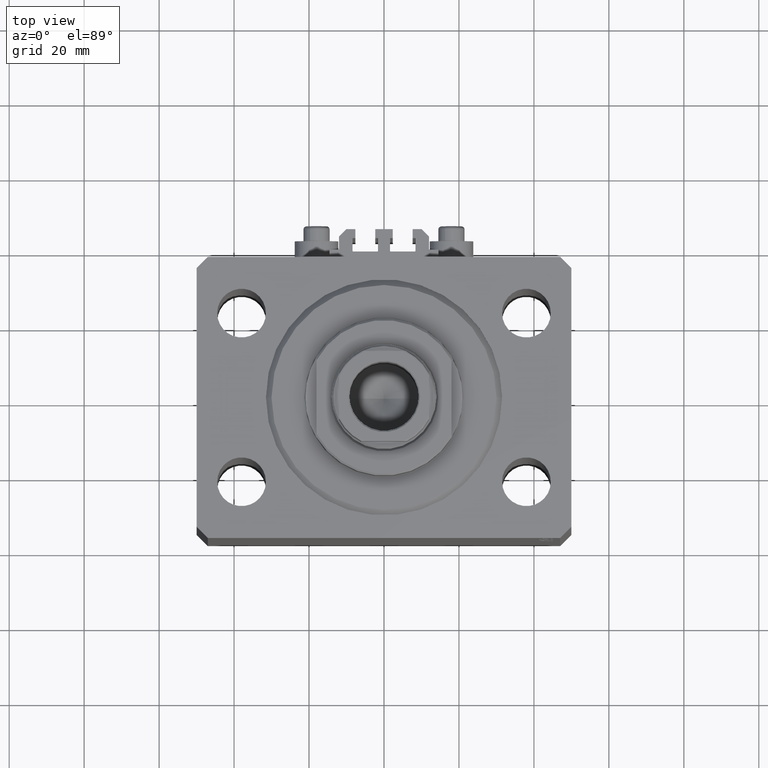
[diagram: clean part render]
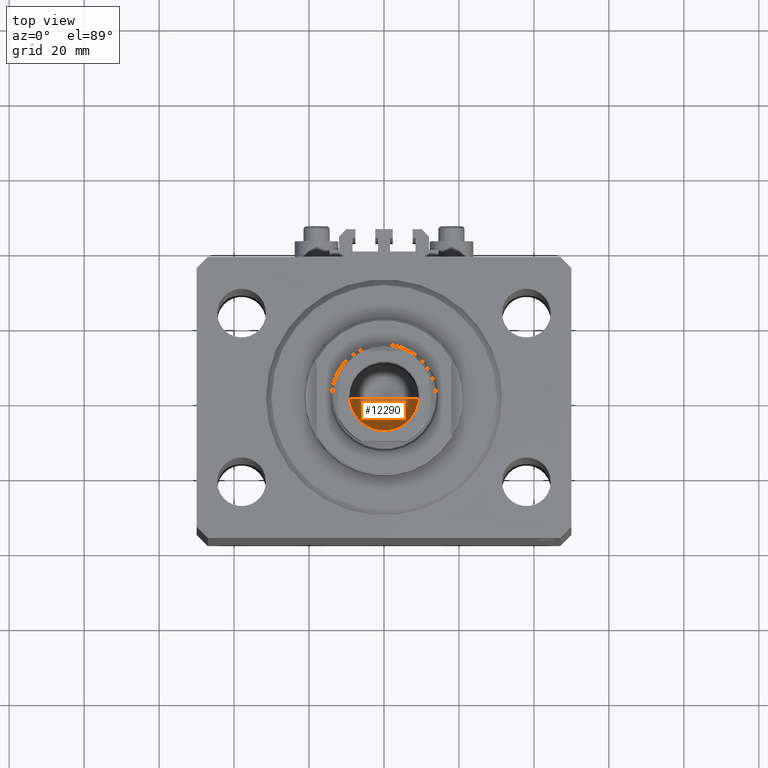
[diagram: same view with one face highlighted and labeled with its STEP entity id]
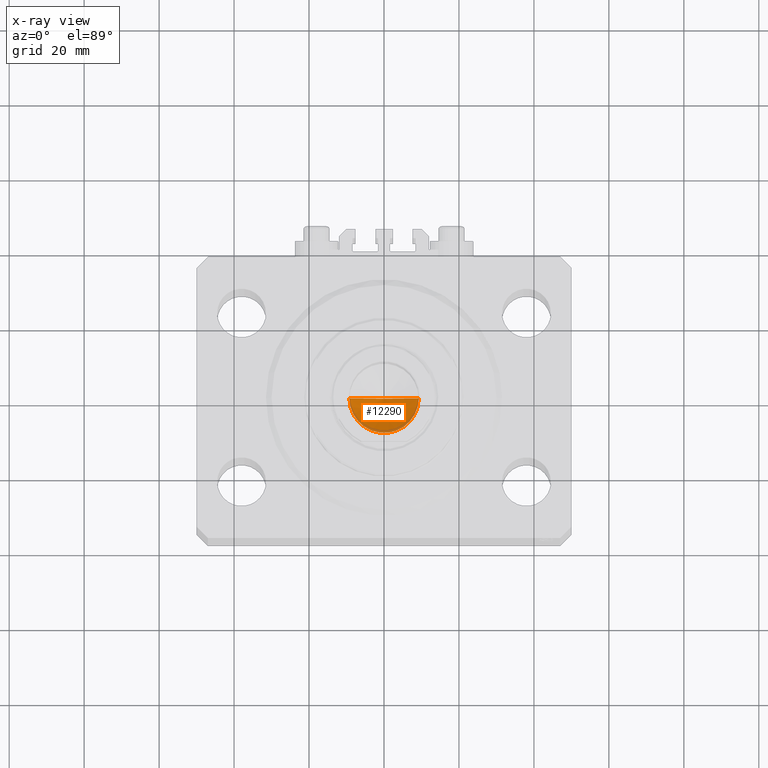
[diagram: x-ray of the same camera — body ghosted, the highlighted face saturated]
A machine part, top view. The second image highlights one B-rep face of the part: STEP entity #12290.
The next image is the same camera in x-ray: the body ghosted, the highlighted face saturated — about 8% of this face is hidden behind the body in this view.
In plain terms, the highlighted conical surface has half-angle 59 deg.
Its self-contained STEP definition (entity closure, byte-faithful):
#1807 = DIRECTION ( 'NONE',  ( -0.8571673007021117785, 1.049727191138617956E-16, 0.5150380749100550437 ) ) ;
#2642 = EDGE_LOOP ( 'NONE', ( #42166, #4686, #16656 ) ) ;
#4686 = ORIENTED_EDGE ( 'NONE', *, *, #7671, .T. ) ;
#7671 = EDGE_CURVE ( 'NONE', #9402, #39761, #38424, .T. ) ;
#7905 = DIRECTION ( 'NONE',  ( 1.000000000000000000, 0.000000000000000000, 0.000000000000000000 ) ) ;
#8013 = VECTOR ( 'NONE', #40605, 1000.000000000000000 ) ;
#8459 = VERTEX_POINT ( 'NONE', #21640 ) ;
#9402 = VERTEX_POINT ( 'NONE', #19967 ) ;
#9584 = VECTOR ( 'NONE', #1807, 1000.000000000000000 ) ;
#11360 = EDGE_CURVE ( 'NONE', #9402, #8459, #30099, .T. ) ;
#12290 = ADVANCED_FACE ( 'NONE', ( #37829 ), #26394, .F. ) ;
#12734 = CARTESIAN_POINT ( 'NONE',  ( 0.000000000000000000, 0.000000000000000000, 98.09999999999999432 ) ) ;
#16656 = ORIENTED_EDGE ( 'NONE', *, *, #26685, .T. ) ;
#18015 = AXIS2_PLACEMENT_3D ( 'NONE', #30658, #34248, #7905 ) ;
#19967 = CARTESIAN_POINT ( 'NONE',  ( -1.046994375366439223E-14, 0.000000000000000000, 92.54203927399505858 ) ) ;
#20605 = DIRECTION ( 'NONE',  ( 1.000000000000000000, 0.000000000000000000, 0.000000000000000000 ) ) ;
#21640 = CARTESIAN_POINT ( 'NONE',  ( 9.249999999999994671, 0.000000000000000000, 98.09999999999999432 ) ) ;
#22903 = CARTESIAN_POINT ( 'NONE',  ( 9.249999999999994671, 0.000000000000000000, 98.09999999999999432 ) ) ;
#26394 = CONICAL_SURFACE ( 'NONE', #18015, 9.249999999999994671, 1.029744258676653423 ) ;
#26685 = EDGE_CURVE ( 'NONE', #39761, #8459, #38283, .T. ) ;
#27795 = DIRECTION ( 'NONE',  ( -0.000000000000000000, -0.000000000000000000, 1.000000000000000000 ) ) ;
#30099 = LINE ( 'NONE', #22903, #8013 ) ;
#30658 = CARTESIAN_POINT ( 'NONE',  ( 0.000000000000000000, 0.000000000000000000, 98.09999999999999432 ) ) ;
#34132 = CARTESIAN_POINT ( 'NONE',  ( -9.249999999999994671, 1.132798289211300909E-15, 98.09999999999999432 ) ) ;
#34248 = DIRECTION ( 'NONE',  ( -0.000000000000000000, -0.000000000000000000, 1.000000000000000000 ) ) ;
#37531 = AXIS2_PLACEMENT_3D ( 'NONE', #12734, #27795, #20605 ) ;
#37829 = FACE_OUTER_BOUND ( 'NONE', #2642, .T. ) ;
#38283 = CIRCLE ( 'NONE', #37531, 9.249999999999994671 ) ;
#38424 = LINE ( 'NONE', #34132, #9584 ) ;
#38646 = CARTESIAN_POINT ( 'NONE',  ( -9.249999999999994671, 1.132798289211300909E-15, 98.09999999999999432 ) ) ;
#39761 = VERTEX_POINT ( 'NONE', #38646 ) ;
#40605 = DIRECTION ( 'NONE',  ( 0.8571673007021117785, 0.000000000000000000, 0.5150380749100550437 ) ) ;
#42166 = ORIENTED_EDGE ( 'NONE', *, *, #11360, .F. ) ;